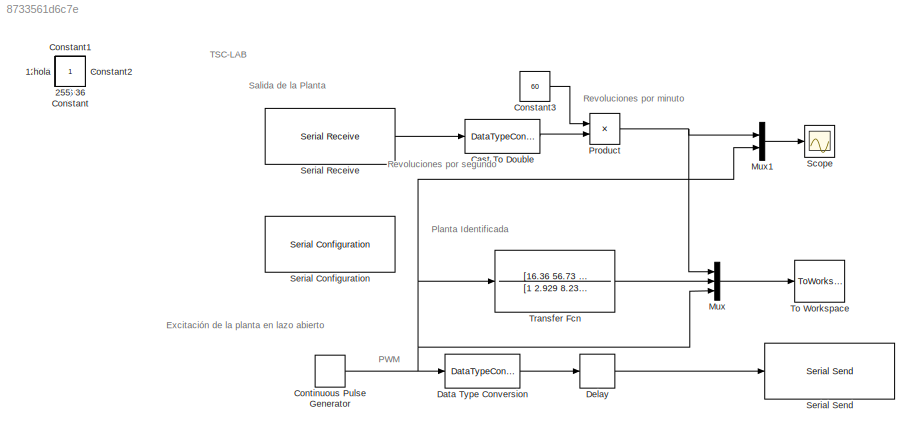
MODEL slx_8733561d6c7e
KIND model
CONFIG AbsTol = auto
CONFIG EnableMultiTasking = off
CONFIG FixedStep = auto
CONFIG MaxStep = auto
CONFIG MinStep = auto
CONFIG RelTol = 1e-3
CONFIG SampleTimeConstraint = Unconstrained
CONFIG Solver = VariableStepAuto
CONFIG SolverName = VariableStepAuto
CONFIG StartTime = 0.0
CONFIG StopTime = 200
BLOCK [Constant] $
  IOType = siggen
  Value = 36
BLOCK [Constant] ,
  IOType = siggen
  Value = 44
BLOCK [Constant] 0
  IOType = siggen
BLOCK [Constant] 0A
  IOType = siggen
  Value = 10
BLOCK [Constant] 0D
  IOType = siggen
  Value = 13
BLOCK [Constant] 10
  IOType = siggen
BLOCK [Constant] 12345
  IOType = siggen
BLOCK [Constant] 13
  IOType = siggen
  Value = 13
BLOCK [Constant] 255
  IOType = siggen
BLOCK [Constant] 311
  IOType = siggen
BLOCK [Constant] 36
  IOType = siggen
  Value = 36
BLOCK [DataTypeConversion] Cast To Double
  OutDataTypeStr = double
  RndMeth = Floor
  SaturateOnIntegerOverflow = off
BLOCK [Constant] Constant
  IOType = siggen
BLOCK [Constant] Constant1
  IOType = siggen
BLOCK [Constant] Constant2
  IOType = siggen
BLOCK [Constant] Constant3
  Value = 60
BLOCK [DiscretePulseGenerator] Continuous Pulse Generator
  Amplitude = 255
  Period = 24
  Ports = [0, 1]
  PulseType = Time based
  PulseWidth = 50
BLOCK [DataTypeConversion] Data Type Conversion
  OutDataTypeStr = uint8
  RndMeth = Floor
  SaturateOnIntegerOverflow = off
BLOCK [Delay] Delay
  DelayLength = 1
  InitialCondition = 0
  InputPortMap = u0
  Ports = [1, 1]
BLOCK [Mux] Mux
  DisplayOption = bar
  Inputs = 3
  Ports = [3, 1]
BLOCK [Mux] Mux1
  DisplayOption = bar
  Inputs = 2
  Ports = [2, 1]
BLOCK [Product] Product
  Ports = [2, 1]
BLOCK [Scope] Scope
  Floating = off
  NumInputPorts = 1
  Ports = [1]
  ScopeSpecificationString = Simulink.scopes.TimeScopeBlockCfg('CurrentConfiguration', extmgr.ConfigurationSet(extmgr.Configuration('Core','General UI',true),extmgr.Configuration('Core','Source UI',true),extmgr.Configuration('Sources','WiredSimulink',true),extmgr.Configuration('Visuals','Time Domain',true,'SerializedDisplays',{struct('MinYLimReal','-1747.5','MaxYLimReal','15727.5','YLabelReal','','MinYLimMag','  0.00000','Max...<+1427ch>
BLOCK [Reference] Serial Configuration  REF=instrumentlib/Serial Configuration
  ObjConstructor = serial('COM11');
  Ports = []
  Priority = -200000
  SourceBlock = instrumentlib/Serial Configuration
  SourceProductBaseCode = IC
  SourceType = matlabshared.seriallib.internal.system.SerialConfiguration
BLOCK [Reference] Serial Receive  REF=instrumentlib/Serial Receive
  ObjConstructor = serial('COM11');
  Ports = [0, 1]
  SourceBlock = instrumentlib/Serial Receive
  SourceProductBaseCode = IC
  SourceType = matlabshared.seriallib.internal.system.SerialReceive
BLOCK [Reference] Serial Send  REF=instrumentlib/Serial Send
  ObjConstructor = serial('COM11');
  Ports = [1]
  SourceBlock = instrumentlib/Serial Send
  SourceProductBaseCode = IC
  SourceType = matlabshared.seriallib.internal.system.SerialSend
BLOCK [ToWorkspace] To Workspace
  MaxDataPoints = inf
  Ports = [1]
  SampleTime = -1
  Save2DSignal = 2-D array (concatenate along first dimension)
  VariableName = yout
BLOCK [TransferFcn] Transfer Fcn
  Denominator = [1 2.929 8.234 6.306 1.743]
  Numerator = [16.36 56.73 145.3 150 53.79]
BLOCK [Constant] hola
  IOType = siggen
ANNOTATION (root): Excitación de la planta en lazo abierto
ANNOTATION (root): PWM
ANNOTATION (root): Planta Identificada
ANNOTATION (root): Revoluciones por minuto
ANNOTATION (root): Revoluciones por segundo
ANNOTATION (root): Salida de la Planta
ANNOTATION (root): TSC-LAB
LINE Cast To Double:1 -> Product:2
LINE Constant3:1 -> Product:1
NET Continuous Pulse Generator:1 -> Data Type Conversion:1, Mux1:2, Mux:3, Transfer Fcn:1
LINE Data Type Conversion:1 -> Delay:1
LINE Delay:1 -> Serial Send:1
LINE Mux1:1 -> Scope:1
LINE Mux:1 -> To Workspace:1
NET Product:1 -> Mux1:1, Mux:1
LINE Serial Receive:1 -> Cast To Double:1
LINE Transfer Fcn:1 -> Mux:2
note: NET lines group one-source signal fan-out (src -> all destinations, sorted); 1:1 wires keep LINE
